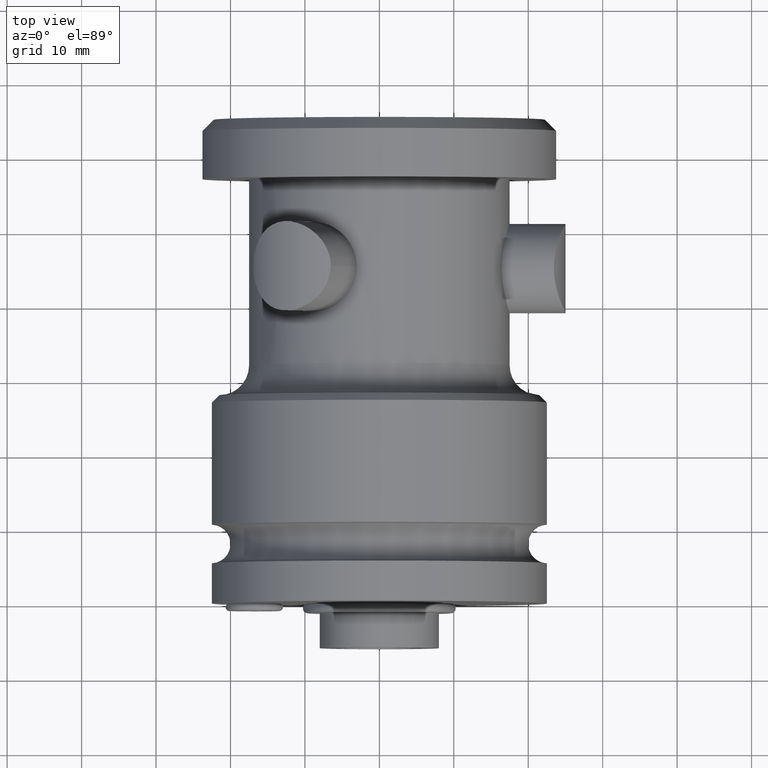
[diagram: clean part render]
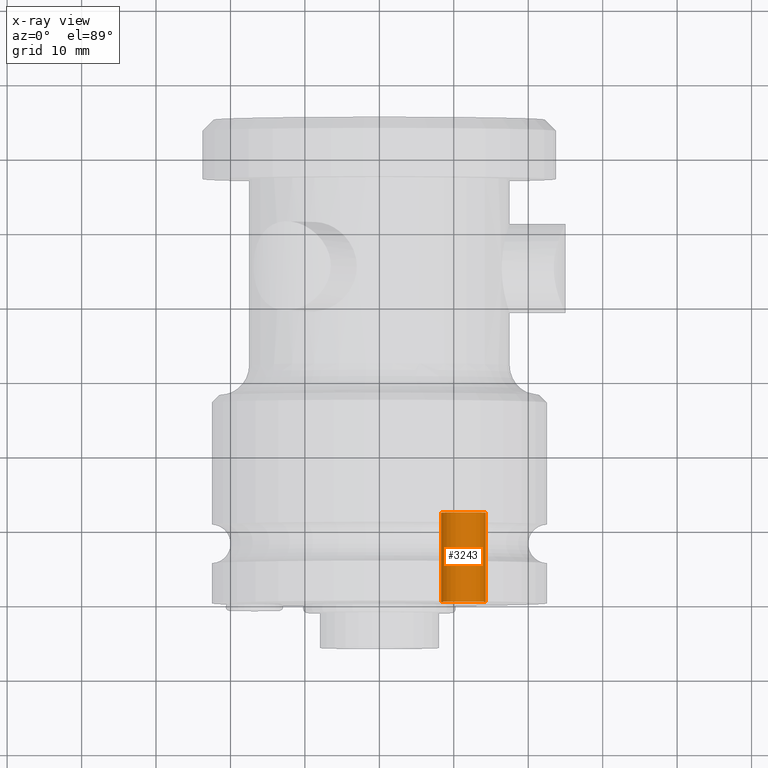
[diagram: x-ray — body ghosted, one internal face saturated and labeled with its STEP entity id]
A machine part, top view, then the same camera in x-ray: the body is ghosted and one INTERNAL B-rep face — a face not visible from any outside direction — is saturated and labeled: STEP entity #3243.
In plain terms, the highlighted cylindrical surface (edge-blend (fillet) strip) has radius 3 mm, axis along (0, 1, 0).
Its self-contained STEP definition (entity closure, byte-faithful):
#3137=CARTESIAN_POINT('',(1.13E1,1.2E1,1.13E1));
#3138=DIRECTION('',(0.E0,1.E0,0.E0));
#3139=DIRECTION('',(-1.E0,0.E0,0.E0));
#3140=AXIS2_PLACEMENT_3D('',#3137,#3138,#3139);
#3169=DIRECTION('',(0.E0,-1.E0,0.E0));
#3170=VECTOR('',#3169,1.2E1);
#3171=CARTESIAN_POINT('',(8.3E0,1.2E1,1.13E1));
#3172=LINE('',#3171,#3170);
#3176=DIRECTION('',(0.E0,-1.E0,0.E0));
#3177=VECTOR('',#3176,1.2E1);
#3178=CARTESIAN_POINT('',(1.43E1,1.2E1,1.13E1));
#3179=LINE('',#3178,#3177);
#3183=CARTESIAN_POINT('',(1.13E1,0.E0,1.13E1));
#3184=DIRECTION('',(0.E0,1.E0,0.E0));
#3185=DIRECTION('',(-1.E0,0.E0,0.E0));
#3186=AXIS2_PLACEMENT_3D('',#3183,#3184,#3185);
#3199=CARTESIAN_POINT('',(8.3E0,1.2E1,1.13E1));
#3200=CARTESIAN_POINT('',(1.43E1,1.2E1,1.13E1));
#3201=VERTEX_POINT('',#3199);
#3202=VERTEX_POINT('',#3200);
#3203=CARTESIAN_POINT('',(8.3E0,0.E0,1.13E1));
#3204=CARTESIAN_POINT('',(1.43E1,0.E0,1.13E1));
#3205=VERTEX_POINT('',#3203);
#3206=VERTEX_POINT('',#3204);
#3229=CARTESIAN_POINT('',(1.13E1,1.2E1,1.13E1));
#3230=DIRECTION('',(0.E0,1.E0,0.E0));
#3231=DIRECTION('',(-1.E0,0.E0,0.E0));
#3232=AXIS2_PLACEMENT_3D('',#3229,#3230,#3231);
#3233=CYLINDRICAL_SURFACE('',#3232,3.E0);
#3234=ORIENTED_EDGE('',*,*,#3216,.T.);
#3236=ORIENTED_EDGE('',*,*,#3235,.T.);
#3238=ORIENTED_EDGE('',*,*,#3237,.F.);
#3240=ORIENTED_EDGE('',*,*,#3239,.F.);
#3241=EDGE_LOOP('',(#3234,#3236,#3238,#3240));
#3242=FACE_OUTER_BOUND('',#3241,.F.);
#3141=CIRCLE('',#3140,3.E0);
#3187=CIRCLE('',#3186,3.E0);
#3216=EDGE_CURVE('',#3201,#3202,#3141,.T.);
#3235=EDGE_CURVE('',#3202,#3206,#3179,.T.);
#3237=EDGE_CURVE('',#3205,#3206,#3187,.T.);
#3239=EDGE_CURVE('',#3201,#3205,#3172,.T.);
#3243=ADVANCED_FACE('',(#3242),#3233,.T.);